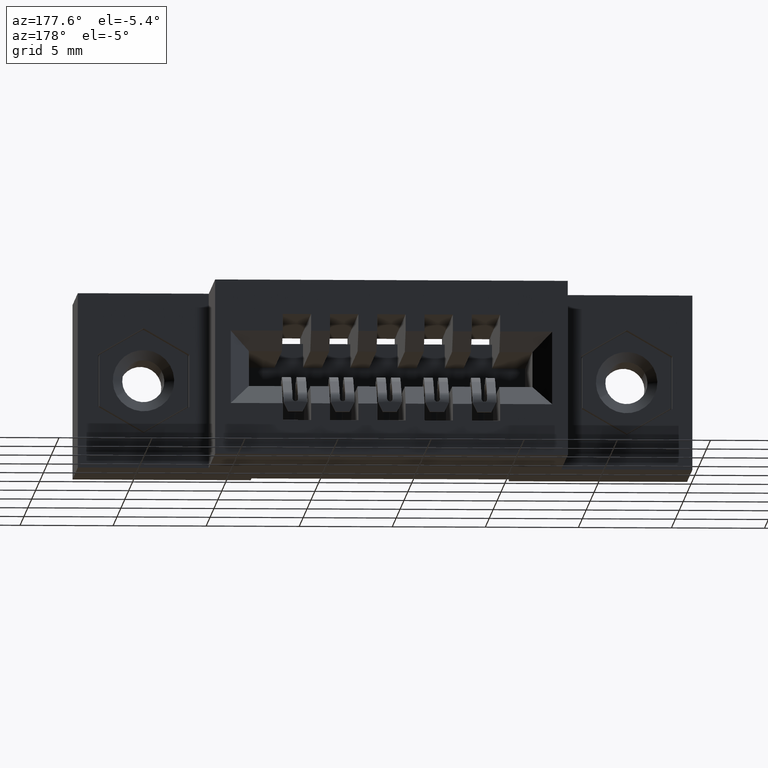
[diagram: clean part render]
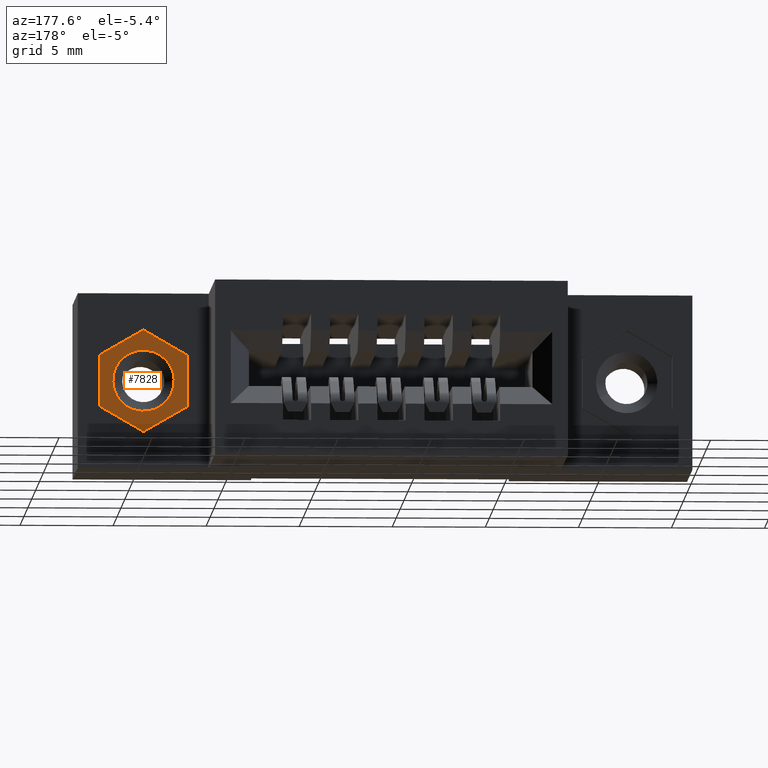
[diagram: same view with one face highlighted and labeled with its STEP entity id]
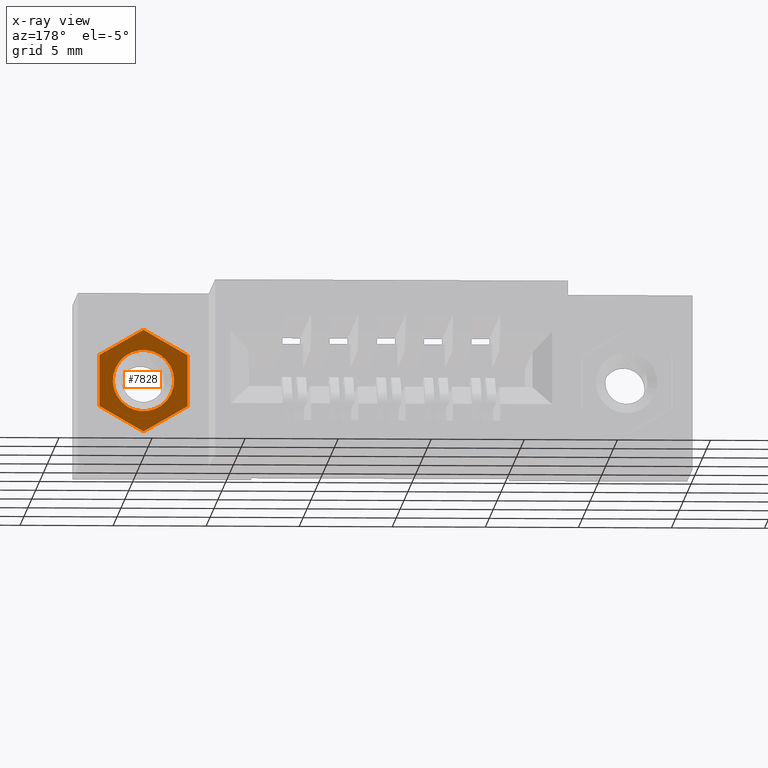
[diagram: x-ray of the same camera — body ghosted, the highlighted face saturated]
A machine part, auxiliary view. The second image highlights one B-rep face of the part: STEP entity #7828.
The next image is the same camera in x-ray: the body ghosted, the highlighted face saturated — about 0% of this face is hidden behind the body in this view.
In plain terms, the highlighted planar face has unit normal (-0, -1, -0).
Its self-contained STEP definition (entity closure, byte-faithful):
#40 = VERTEX_POINT ( 'NONE', #563 ) ;
#135 = EDGE_LOOP ( 'NONE', ( #5871, #6983 ) ) ;
#274 = VERTEX_POINT ( 'NONE', #3132 ) ;
#396 = ORIENTED_EDGE ( 'NONE', *, *, #8489, .F. ) ;
#479 = CARTESIAN_POINT ( 'NONE',  ( 0.0000000000000000000, 4.780733988912460100E-016, -0.1079645003384597700 ) ) ;
#521 = CARTESIAN_POINT ( 'NONE',  ( -4.097771990496394800E-016, 0.0000000000000000000, 0.1079645003384601700 ) ) ;
#563 = CARTESIAN_POINT ( 'NONE',  ( -0.09350000000000011100, 0.0000000000000000000, -0.05398225016922967400 ) ) ;
#742 = CARTESIAN_POINT ( 'NONE',  ( -1.365923996832131600E-016, -6.829619984160658000E-017, 0.0000000000000000000 ) ) ;
#761 = DIRECTION ( 'NONE',  ( 5.968164126255291300E-016, -1.000000000000000000, 4.048957226368561900E-017 ) ) ;
#939 = CIRCLE ( 'NONE', #2733, 0.06500000000000014100 ) ;
#1014 = AXIS2_PLACEMENT_3D ( 'NONE', #5397, #2075, #6740 ) ;
#1259 = VERTEX_POINT ( 'NONE', #479 ) ;
#1408 = EDGE_CURVE ( 'NONE', #3342, #6070, #939, .T. ) ;
#1561 = CARTESIAN_POINT ( 'NONE',  ( 0.09349999999999957000, 4.780733988912460100E-016, 0.05398225016923008400 ) ) ;
#1582 = CARTESIAN_POINT ( 'NONE',  ( 0.09349999999999936100, 4.780733988912460100E-016, -0.05398225016923063200 ) ) ;
#1681 = DIRECTION ( 'NONE',  ( 1.110223024625156300E-016, 4.048957226368544000E-017, -1.000000000000000000 ) ) ;
#1846 = ORIENTED_EDGE ( 'NONE', *, *, #8614, .F. ) ;
#2075 = DIRECTION ( 'NONE',  ( -5.968164126255291300E-016, 1.000000000000000000, 4.048957226368540300E-017 ) ) ;
#2159 = CARTESIAN_POINT ( 'NONE',  ( -0.09350000000000011100, 0.0000000000000000000, -0.05398225016922967400 ) ) ;
#2585 = CARTESIAN_POINT ( 'NONE',  ( 0.09349999999999936100, 4.780733988912460100E-016, -0.05398225016923063200 ) ) ;
#2601 = FACE_BOUND ( 'NONE', #135, .T. ) ;
#2733 = AXIS2_PLACEMENT_3D ( 'NONE', #742, #4061, #1681 ) ;
#2880 = EDGE_LOOP ( 'NONE', ( #1846, #6527, #8232, #4494, #4766, #396 ) ) ;
#2946 = DIRECTION ( 'NONE',  ( -6.106226635438361000E-016, 4.048957226368613700E-017, -1.000000000000000000 ) ) ;
#3124 = LINE ( 'NONE', #1561, #6463 ) ;
#3132 = CARTESIAN_POINT ( 'NONE',  ( 0.09349999999999957000, 4.780733988912460100E-016, 0.05398225016923008400 ) ) ;
#3342 = VERTEX_POINT ( 'NONE', #8641 ) ;
#3385 = CARTESIAN_POINT ( 'NONE',  ( -0.09350000000000025000, 0.0000000000000000000, 0.05398225016923036100 ) ) ;
#3413 = LINE ( 'NONE', #5911, #4984 ) ;
#3672 = CARTESIAN_POINT ( 'NONE',  ( -1.293759500231496200E-016, -7.092802203874615000E-017, -0.06500000000000015500 ) ) ;
#4025 = VERTEX_POINT ( 'NONE', #2585 ) ;
#4061 = DIRECTION ( 'NONE',  ( 5.968164126255291300E-016, -1.000000000000000000, 4.048957226368561900E-017 ) ) ;
#4473 = VECTOR ( 'NONE', #4809, 39.37007874015748900 ) ;
#4494 = ORIENTED_EDGE ( 'NONE', *, *, #8220, .F. ) ;
#4680 = LINE ( 'NONE', #6117, #4473 ) ;
#4733 = PLANE ( 'NONE',  #1014 ) ;
#4766 = ORIENTED_EDGE ( 'NONE', *, *, #7915, .F. ) ;
#4809 = DIRECTION ( 'NONE',  ( -0.8660254037844384900, 4.966133885973610100E-016, 0.5000000000000001100 ) ) ;
#4934 = CARTESIAN_POINT ( 'NONE',  ( -1.365923996832131600E-016, -6.829619984160658000E-017, 0.0000000000000000000 ) ) ;
#4984 = VECTOR ( 'NONE', #6601, 39.37007874015748100 ) ;
#5191 = LINE ( 'NONE', #1582, #8545 ) ;
#5397 = CARTESIAN_POINT ( 'NONE',  ( 0.0000000000000000000, 4.780733988912460100E-016, -0.1079645003384597700 ) ) ;
#5526 = LINE ( 'NONE', #2159, #5736 ) ;
#5590 = DIRECTION ( 'NONE',  ( 1.110223024625156300E-016, 4.048957226368544000E-017, -1.000000000000000000 ) ) ;
#5698 = VERTEX_POINT ( 'NONE', #3385 ) ;
#5736 = VECTOR ( 'NONE', #6806, 39.37007874015748100 ) ;
#5848 = CARTESIAN_POINT ( 'NONE',  ( -0.09350000000000025000, 0.0000000000000000000, 0.05398225016923036100 ) ) ;
#5871 = ORIENTED_EDGE ( 'NONE', *, *, #8012, .F. ) ;
#5911 = CARTESIAN_POINT ( 'NONE',  ( -4.097771990496394800E-016, 0.0000000000000000000, 0.1079645003384601700 ) ) ;
#6051 = AXIS2_PLACEMENT_3D ( 'NONE', #4934, #761, #5590 ) ;
#6070 = VERTEX_POINT ( 'NONE', #3672 ) ;
#6117 = CARTESIAN_POINT ( 'NONE',  ( 0.0000000000000000000, 4.780733988912460100E-016, -0.1079645003384597700 ) ) ;
#6157 = FACE_OUTER_BOUND ( 'NONE', #2880, .T. ) ;
#6355 = VECTOR ( 'NONE', #6530, 39.37007874015748100 ) ;
#6463 = VECTOR ( 'NONE', #2946, 39.37007874015748100 ) ;
#6527 = ORIENTED_EDGE ( 'NONE', *, *, #8027, .F. ) ;
#6530 = DIRECTION ( 'NONE',  ( 0.8660254037844389300, -5.371029608610466600E-016, 0.4999999999999994400 ) ) ;
#6568 = LINE ( 'NONE', #5848, #6355 ) ;
#6601 = DIRECTION ( 'NONE',  ( 0.8660254037844388200, -4.966133885973615100E-016, -0.4999999999999998300 ) ) ;
#6740 = DIRECTION ( 'NONE',  ( -1.110223024625156500E-016, -4.048957226368547100E-017, 1.000000000000000000 ) ) ;
#6806 = DIRECTION ( 'NONE',  ( -1.110223024625156500E-016, -4.048957226368547100E-017, 1.000000000000000000 ) ) ;
#6983 = ORIENTED_EDGE ( 'NONE', *, *, #1408, .F. ) ;
#7620 = EDGE_CURVE ( 'NONE', #7809, #274, #3413, .T. ) ;
#7809 = VERTEX_POINT ( 'NONE', #521 ) ;
#7828 = ADVANCED_FACE ( 'NONE', ( #2601, #6157 ), #4733, .F. ) ;
#7915 = EDGE_CURVE ( 'NONE', #40, #5698, #5526, .T. ) ;
#8012 = EDGE_CURVE ( 'NONE', #6070, #3342, #8665, .T. ) ;
#8027 = EDGE_CURVE ( 'NONE', #274, #4025, #3124, .T. ) ;
#8220 = EDGE_CURVE ( 'NONE', #5698, #7809, #6568, .T. ) ;
#8232 = ORIENTED_EDGE ( 'NONE', *, *, #7620, .F. ) ;
#8283 = DIRECTION ( 'NONE',  ( -0.8660254037844383700, 5.371029608610464600E-016, -0.5000000000000004400 ) ) ;
#8489 = EDGE_CURVE ( 'NONE', #1259, #40, #4680, .T. ) ;
#8545 = VECTOR ( 'NONE', #8283, 39.37007874015748100 ) ;
#8614 = EDGE_CURVE ( 'NONE', #4025, #1259, #5191, .T. ) ;
#8641 = CARTESIAN_POINT ( 'NONE',  ( -1.358486451488188800E-016, -6.566437764446701100E-017, 0.06500000000000014100 ) ) ;
#8665 = CIRCLE ( 'NONE', #6051, 0.06500000000000014100 ) ;